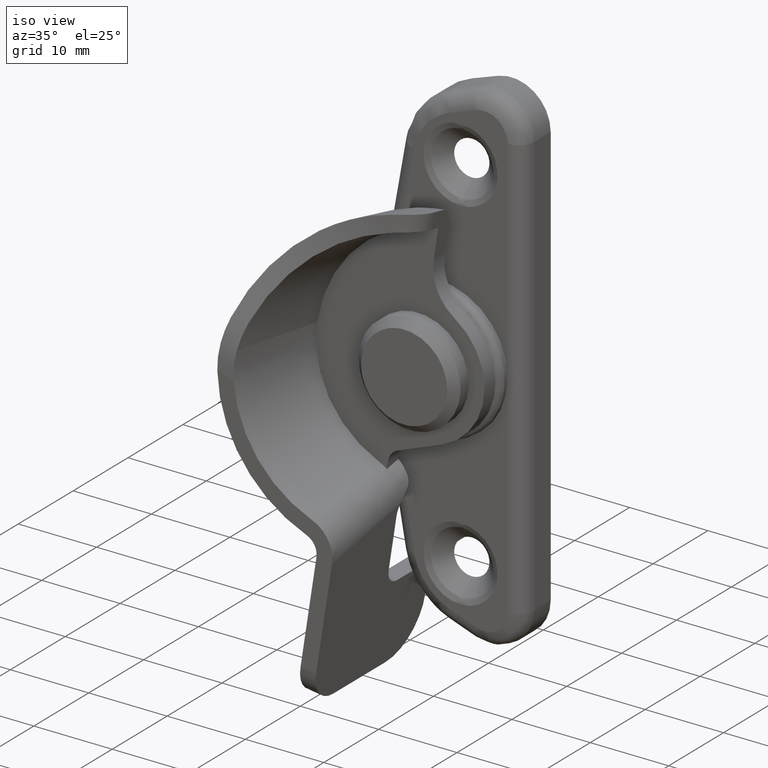
[diagram: clean part render]
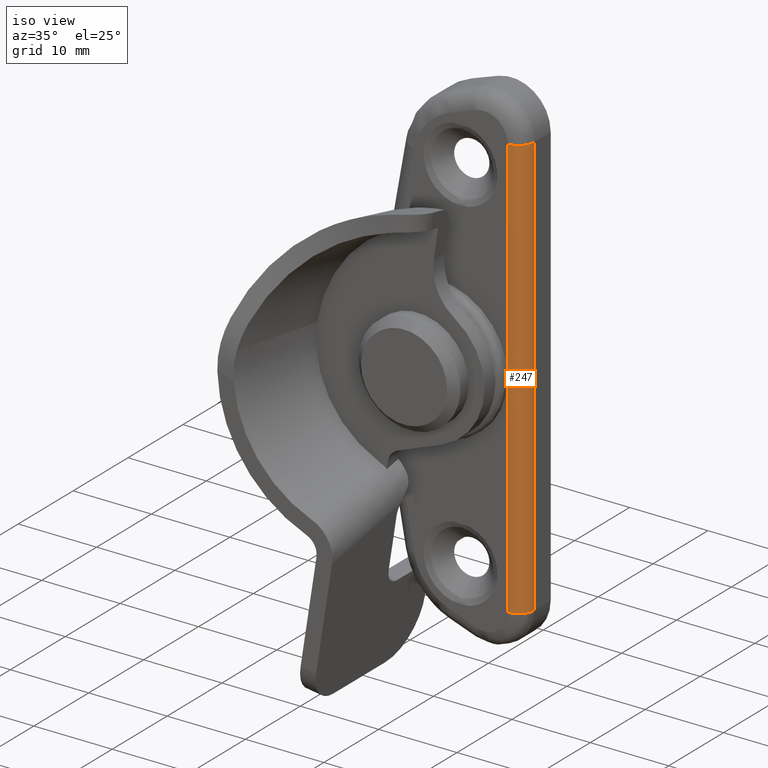
[diagram: same view with one face highlighted and labeled with its STEP entity id]
A machine part, iso view. The second image highlights one B-rep face of the part: STEP entity #247.
In plain terms, the highlighted cylindrical surface (edge-blend (fillet) strip) has radius 2 mm, axis along (0, 0, 1).
Its self-contained STEP definition (entity closure, byte-faithful):
#247=ADVANCED_FACE('',(#1318),#1317,.T.);
#1317=CYLINDRICAL_SURFACE('',#2988,2.00000000000E+00);
#1318=FACE_OUTER_BOUND('',#2989,.T.);
#2985=CARTESIAN_POINT('',(-1.30000000000E+01,5.50000000000E+00,0.00000000000E+00));
#2986=DIRECTION('',(-0.00000000000E+00,-0.00000000000E+00,1.00000000000E+00));
#2987=DIRECTION('',(-1.00000000000E+00,-0.00000000000E+00,-0.00000000000E+00));
#2988=AXIS2_PLACEMENT_3D('',#2985,#2986,#2987);
#2989=EDGE_LOOP('',(#4415,#4416,#4417,#4418,#4419));
#4415=ORIENTED_EDGE('',*,*,#5070,.T.);
#4416=ORIENTED_EDGE('',*,*,#5071,.F.);
#4417=ORIENTED_EDGE('',*,*,#5072,.T.);
#4418=ORIENTED_EDGE('',*,*,#5067,.T.);
#4419=ORIENTED_EDGE('',*,*,#5073,.T.);
#5067=EDGE_CURVE('',#7024,#7025,#7026,.T.);
#5070=EDGE_CURVE('',#7044,#7045,#7046,.T.);
#5071=EDGE_CURVE('',#7052,#7045,#7053,.T.);
#5072=EDGE_CURVE('',#7052,#7024,#7059,.T.);
#5073=EDGE_CURVE('',#7025,#7044,#7065,.T.);
#7024=VERTEX_POINT('',#9514);
#7025=VERTEX_POINT('',#9515);
#7026=CIRCLE('',#9519,2.00000000000E+00);
#7044=VERTEX_POINT('',#9528);
#7045=VERTEX_POINT('',#9529);
#7046=LINE('',#9530,#9531);
#7052=VERTEX_POINT('',#9533);
#7053=CIRCLE('',#9537,2.00000000000E+00);
#7059=LINE('',#9538,#9539);
#7065=LINE('',#9541,#9542);
#9514=CARTESIAN_POINT('',(-1.10000000000E+01,5.50000000000E+00,2.69999943720E+01));
#9515=CARTESIAN_POINT('',(-1.30000000000E+01,3.50000000000E+00,2.69999945465E+01));
#9516=CARTESIAN_POINT('',(-1.30000000000E+01,5.50000000000E+00,2.69999943720E+01));
#9517=DIRECTION('',(0.00000000000E+00,-8.72664614182E-08,-1.00000000000E+00));
#9518=DIRECTION('',(-0.00000000000E+00,1.00000000000E+00,-8.72664614182E-08));
#9519=AXIS2_PLACEMENT_3D('',#9516,#9517,#9518);
#9528=CARTESIAN_POINT('',(-1.30000000000E+01,3.50000000000E+00,0.00000000000E+00));
#9529=CARTESIAN_POINT('',(-1.30000000000E+01,3.50000000000E+00,-2.70000044063E+01));
#9530=CARTESIAN_POINT('',(-1.30000000000E+01,3.50000000000E+00,0.00000000000E+00));
#9531=VECTOR('',#9532,2.70000044063E+01);
#9532=DIRECTION('',(0.00000000000E+00,0.00000000000E+00,-1.00000000000E+00));
#9533=CARTESIAN_POINT('',(-1.10000000000E+01,5.50000000000E+00,-2.70000044063E+01));
#9534=CARTESIAN_POINT('',(-1.30000000000E+01,5.50000000000E+00,-2.69999991913E+01));
#9535=DIRECTION('',(-2.60747636502E-06,2.60747636504E-06,-9.99999999993E-01));
#9536=DIRECTION('',(2.20861839036E-27,9.99999999997E-01,2.60747636505E-06));
#9537=AXIS2_PLACEMENT_3D('',#9534,#9535,#9536);
#9538=CARTESIAN_POINT('',(-1.10000000000E+01,5.50000000000E+00,-2.70000044063E+01));
#9539=VECTOR('',#9540,5.39999987783E+01);
#9540=DIRECTION('',(0.00000000000E+00,0.00000000000E+00,1.00000000000E+00));
#9541=CARTESIAN_POINT('',(-1.30000000000E+01,3.50000000000E+00,2.69999945465E+01));
#9542=VECTOR('',#9543,2.69999945465E+01);
#9543=DIRECTION('',(0.00000000000E+00,0.00000000000E+00,-1.00000000000E+00));